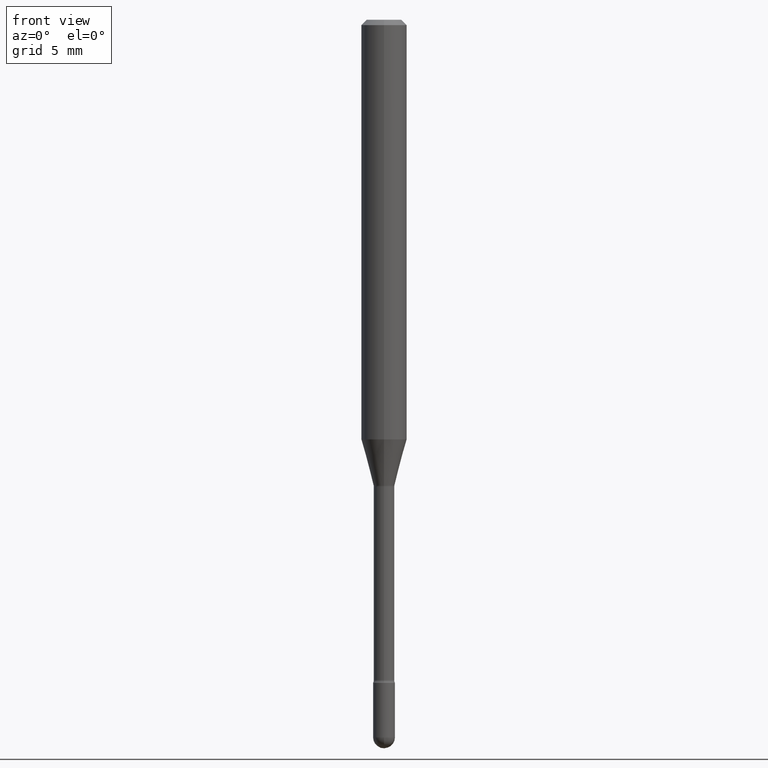
[diagram: clean part render]
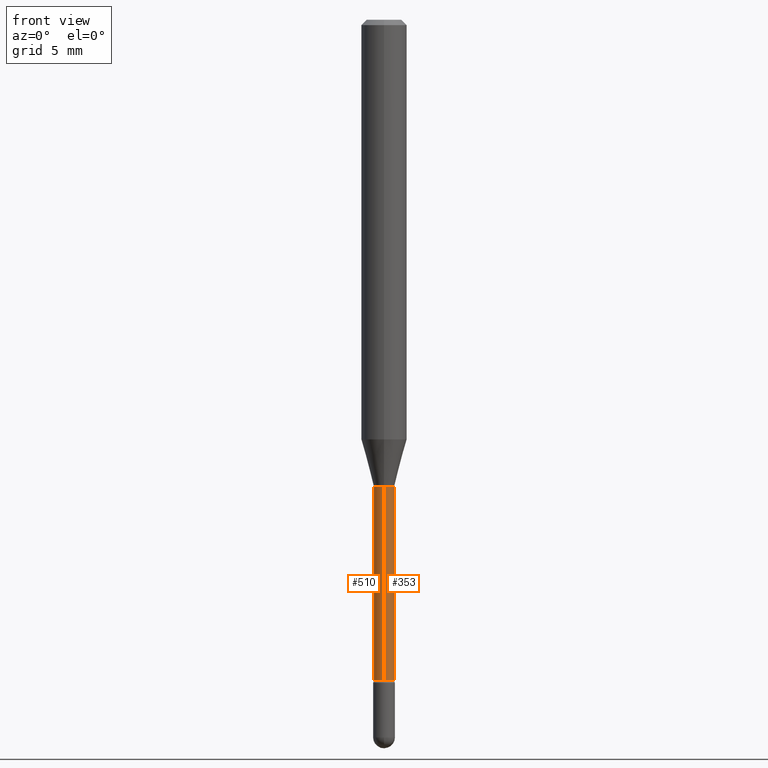
[diagram: same view with one multi-face feature highlighted, each face labeled with its STEP entity id]
A machine part, front view. The highlighted faces form ONE feature: a constant-radius fillet chain: 2 tangent blend faces with common blend radius 0.7163 mm. The faces share edges in the B-rep.
Their STEP definitions:
[1] entity #510 (Cylinder):
#1 = CARTESIAN_POINT ( 'NONE',  ( 3.135034256574997067E-29, -4.475984025182689019E-15, -1.281974787463810994 ) ) ;
#12 = ORIENTED_EDGE ( 'NONE', *, *, #106, .T. ) ;
#23 = CARTESIAN_POINT ( 'NONE',  ( 2.003730514843928186E-16, 0.02819999999999552032, -1.281974787463810994 ) ) ;
#31 = ORIENTED_EDGE ( 'NONE', *, *, #291, .F. ) ;
#42 = CIRCLE ( 'NONE', #121, 0.02820000000000009652 ) ;
#59 = DIRECTION ( 'NONE',  ( -2.445472631156169936E-29, 3.491475861266922489E-15, 1.000000000000000000 ) ) ;
#75 = VERTEX_POINT ( 'NONE', #23 ) ;
#93 = CARTESIAN_POINT ( 'NONE',  ( -1.969195475107530228E-16, -0.02820000000000004794, 5.765330181789734406E-16 ) ) ;
#97 = DIRECTION ( 'NONE',  ( -2.445472631156169936E-29, 3.491475861266922489E-15, 1.000000000000000000 ) ) ;
#106 = EDGE_CURVE ( 'NONE', #468, #176, #42, .T. ) ;
#114 = CIRCLE ( 'NONE', #132, 0.02819999999999999590 ) ;
#121 = AXIS2_PLACEMENT_3D ( 'NONE', #214, #342, #394 ) ;
#132 = AXIS2_PLACEMENT_3D ( 'NONE', #1, #219, #181 ) ;
#139 = ORIENTED_EDGE ( 'NONE', *, *, #183, .F. ) ;
#149 = EDGE_CURVE ( 'NONE', #176, #264, #315, .T. ) ;
#169 = FACE_OUTER_BOUND ( 'NONE', #383, .T. ) ;
#176 = VERTEX_POINT ( 'NONE', #356 ) ;
#181 = DIRECTION ( 'NONE',  ( -6.982962677686265922E-15, -1.000000000000000000, 0.000000000000000000 ) ) ;
#183 = EDGE_CURVE ( 'NONE', #468, #75, #527, .T. ) ;
#214 = CARTESIAN_POINT ( 'NONE',  ( 4.433337161552127439E-29, -6.329610680246607971E-15, -1.812875394747777591 ) ) ;
#219 = DIRECTION ( 'NONE',  ( -2.445472631156169936E-29, 3.491475861266922095E-15, 1.000000000000000000 ) ) ;
#228 = ORIENTED_EDGE ( 'NONE', *, *, #149, .T. ) ;
#264 = VERTEX_POINT ( 'NONE', #492 ) ;
#274 = VECTOR ( 'NONE', #97, 39.37007874015748143 ) ;
#289 = DIRECTION ( 'NONE',  ( -2.445472631156169936E-29, 3.491475861266922095E-15, 1.000000000000000000 ) ) ;
#291 = EDGE_CURVE ( 'NONE', #75, #264, #114, .T. ) ;
#293 = CYLINDRICAL_SURFACE ( 'NONE', #543, 0.02820000000000004794 ) ;
#299 = CARTESIAN_POINT ( 'NONE',  ( -1.169113584055446105E-44, 1.669184350826100908E-30, 4.780733988912460139E-16 ) ) ;
#315 = LINE ( 'NONE', #93, #274 ) ;
#323 = CARTESIAN_POINT ( 'NONE',  ( 2.003730514843485684E-16, 0.02820000000000004794, 3.796137796035186859E-16 ) ) ;
#342 = DIRECTION ( 'NONE',  ( -2.445472631156169936E-29, 3.491475861266922095E-15, 1.000000000000000000 ) ) ;
#356 = CARTESIAN_POINT ( 'NONE',  ( -1.969195475107090191E-16, -0.02820000000000642479, -1.812875394747777591 ) ) ;
#383 = EDGE_LOOP ( 'NONE', ( #139, #12, #228, #31 ) ) ;
#394 = DIRECTION ( 'NONE',  ( -6.982962677686265922E-15, -1.000000000000000000, 0.000000000000000000 ) ) ;
#431 = CARTESIAN_POINT ( 'NONE',  ( 2.067679361062337802E-16, 0.02819999999999376478, -1.812875394747777591 ) ) ;
#468 = VERTEX_POINT ( 'NONE', #431 ) ;
#492 = CARTESIAN_POINT ( 'NONE',  ( -1.969195475107212958E-16, -0.02820000000000447496, -1.281974787463810994 ) ) ;
#510 = ADVANCED_FACE ( 'NONE', ( #169 ), #293, .T. ) ;
#527 = LINE ( 'NONE', #323, #551 ) ;
#543 = AXIS2_PLACEMENT_3D ( 'NONE', #299, #289, #558 ) ;
#551 = VECTOR ( 'NONE', #59, 39.37007874015748143 ) ;
#558 = DIRECTION ( 'NONE',  ( -6.982962677686265922E-15, -1.000000000000000000, 3.491475861266924067E-15 ) ) ;
[2] entity #353 (Cylinder):
#11 = DIRECTION ( 'NONE',  ( -6.982962677686265922E-15, -1.000000000000000000, 0.000000000000000000 ) ) ;
#23 = CARTESIAN_POINT ( 'NONE',  ( 2.003730514843928186E-16, 0.02819999999999552032, -1.281974787463810994 ) ) ;
#24 = CARTESIAN_POINT ( 'NONE',  ( -1.169113584055446105E-44, 1.669184350826100908E-30, 4.780733988912460139E-16 ) ) ;
#59 = DIRECTION ( 'NONE',  ( -2.445472631156169936E-29, 3.491475861266922489E-15, 1.000000000000000000 ) ) ;
#64 = AXIS2_PLACEMENT_3D ( 'NONE', #359, #489, #11 ) ;
#65 = CIRCLE ( 'NONE', #288, 0.02819999999999999590 ) ;
#75 = VERTEX_POINT ( 'NONE', #23 ) ;
#84 = ORIENTED_EDGE ( 'NONE', *, *, #397, .F. ) ;
#93 = CARTESIAN_POINT ( 'NONE',  ( -1.969195475107530228E-16, -0.02820000000000004794, 5.765330181789734406E-16 ) ) ;
#97 = DIRECTION ( 'NONE',  ( -2.445472631156169936E-29, 3.491475861266922489E-15, 1.000000000000000000 ) ) ;
#107 = FACE_OUTER_BOUND ( 'NONE', #211, .T. ) ;
#149 = EDGE_CURVE ( 'NONE', #176, #264, #315, .T. ) ;
#176 = VERTEX_POINT ( 'NONE', #356 ) ;
#183 = EDGE_CURVE ( 'NONE', #468, #75, #527, .T. ) ;
#200 = DIRECTION ( 'NONE',  ( -6.982962677686265922E-15, -1.000000000000000000, 3.491475861266924067E-15 ) ) ;
#211 = EDGE_LOOP ( 'NONE', ( #379, #254, #84, #247 ) ) ;
#247 = ORIENTED_EDGE ( 'NONE', *, *, #149, .F. ) ;
#253 = EDGE_CURVE ( 'NONE', #176, #468, #412, .T. ) ;
#254 = ORIENTED_EDGE ( 'NONE', *, *, #183, .T. ) ;
#264 = VERTEX_POINT ( 'NONE', #492 ) ;
#274 = VECTOR ( 'NONE', #97, 39.37007874015748143 ) ;
#283 = CYLINDRICAL_SURFACE ( 'NONE', #374, 0.02820000000000004794 ) ;
#288 = AXIS2_PLACEMENT_3D ( 'NONE', #535, #402, #531 ) ;
#315 = LINE ( 'NONE', #93, #274 ) ;
#323 = CARTESIAN_POINT ( 'NONE',  ( 2.003730514843485684E-16, 0.02820000000000004794, 3.796137796035186859E-16 ) ) ;
#353 = ADVANCED_FACE ( 'NONE', ( #107 ), #283, .T. ) ;
#356 = CARTESIAN_POINT ( 'NONE',  ( -1.969195475107090191E-16, -0.02820000000000642479, -1.812875394747777591 ) ) ;
#359 = CARTESIAN_POINT ( 'NONE',  ( 4.433337161552127439E-29, -6.329610680246607971E-15, -1.812875394747777591 ) ) ;
#374 = AXIS2_PLACEMENT_3D ( 'NONE', #24, #499, #200 ) ;
#379 = ORIENTED_EDGE ( 'NONE', *, *, #253, .T. ) ;
#397 = EDGE_CURVE ( 'NONE', #264, #75, #65, .T. ) ;
#402 = DIRECTION ( 'NONE',  ( -2.445472631156169936E-29, 3.491475861266922095E-15, 1.000000000000000000 ) ) ;
#412 = CIRCLE ( 'NONE', #64, 0.02820000000000009652 ) ;
#431 = CARTESIAN_POINT ( 'NONE',  ( 2.067679361062337802E-16, 0.02819999999999376478, -1.812875394747777591 ) ) ;
#468 = VERTEX_POINT ( 'NONE', #431 ) ;
#489 = DIRECTION ( 'NONE',  ( -2.445472631156169936E-29, 3.491475861266922095E-15, 1.000000000000000000 ) ) ;
#492 = CARTESIAN_POINT ( 'NONE',  ( -1.969195475107212958E-16, -0.02820000000000447496, -1.281974787463810994 ) ) ;
#499 = DIRECTION ( 'NONE',  ( -2.445472631156169936E-29, 3.491475861266922095E-15, 1.000000000000000000 ) ) ;
#527 = LINE ( 'NONE', #323, #551 ) ;
#531 = DIRECTION ( 'NONE',  ( -6.982962677686265922E-15, -1.000000000000000000, 0.000000000000000000 ) ) ;
#535 = CARTESIAN_POINT ( 'NONE',  ( 3.135034256574997067E-29, -4.475984025182689019E-15, -1.281974787463810994 ) ) ;
#551 = VECTOR ( 'NONE', #59, 39.37007874015748143 ) ;